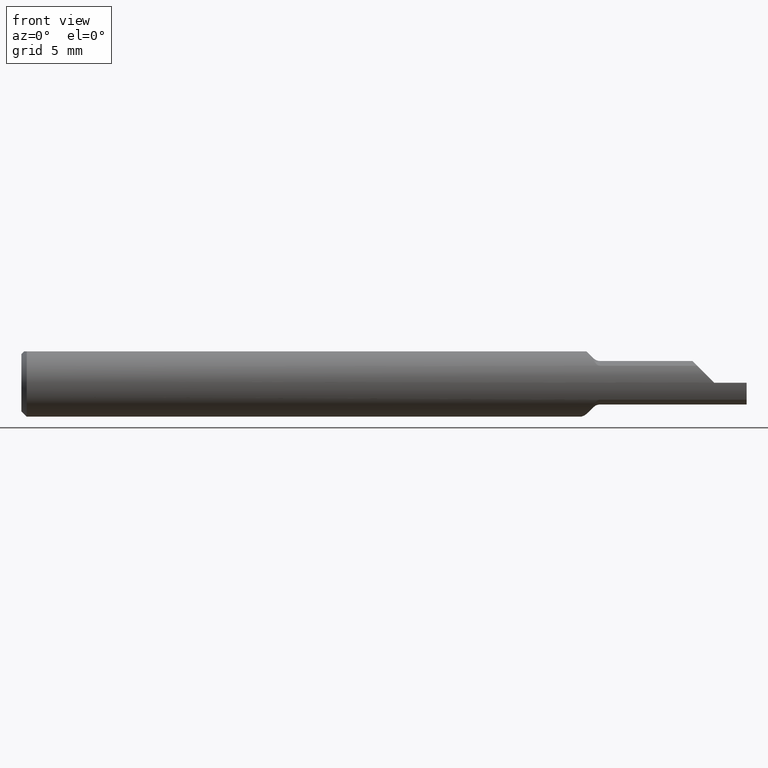
[diagram: clean part render]
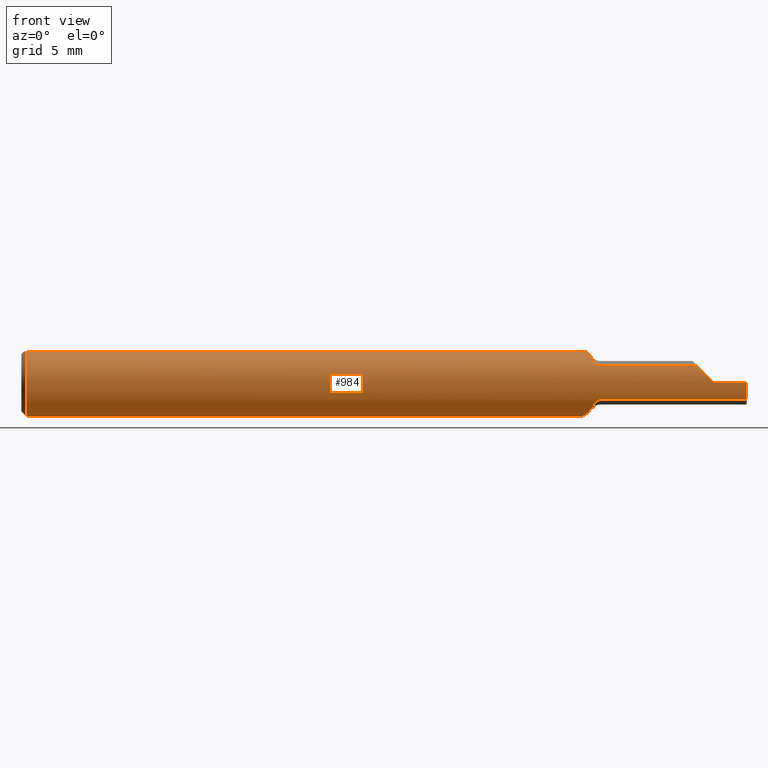
[diagram: same view with one face highlighted and labeled with its STEP entity id]
A machine part, front view. The second image highlights one B-rep face of the part: STEP entity #984.
In plain terms, the highlighted cylindrical surface (edge-blend (fillet) strip) has radius 2.3774 mm, axis along (-1, -0, -0).
Its self-contained STEP definition (entity closure, byte-faithful):
#6 = ORIENTED_EDGE ( 'NONE', *, *, #173, .T. ) ;
#9 =( BOUNDED_CURVE ( )  B_SPLINE_CURVE ( 3, ( #237, #563, #825, #333 ),
 .UNSPECIFIED., .F., .T. ) 
 B_SPLINE_CURVE_WITH_KNOTS ( ( 4, 4 ),
 ( 4.716662497666021636, 5.237580787391522108 ),
 .UNSPECIFIED. ) 
 CURVE ( )  GEOMETRIC_REPRESENTATION_ITEM ( )  RATIONAL_B_SPLINE_CURVE ( ( 1.000000000000000000, 0.9775145593731180416, 0.9775145593731180416, 1.000000000000000000 ) ) 
 REPRESENTATION_ITEM ( '' )  );
#12 = ORIENTED_EDGE ( 'NONE', *, *, #335, .T. ) ;
#27 = CARTESIAN_POINT ( 'NONE',  ( 1.595355339059326916, -0.08098532110091744007, 0.04692907165266853309 ) ) ;
#29 = CARTESIAN_POINT ( 'NONE',  ( 1.507730217382799331, 0.09381949476875167671, 0.001379171797657550687 ) ) ;
#31 = EDGE_CURVE ( 'NONE', #514, #89, #765, .T. ) ;
#32 = CARTESIAN_POINT ( 'NONE',  ( 1.581500133130178787, -0.07537161458921129431, -0.05560766583996937240 ) ) ;
#34 = CARTESIAN_POINT ( 'NONE',  ( 1.515120089012976567, 0.07115311157076049942, 0.06114742213607386040 ) ) ;
#36 = CARTESIAN_POINT ( 'NONE',  ( 1.577677669529663484, -0.07029385114728008144, 0.06180400060581866389 ) ) ;
#43 = DIRECTION ( 'NONE',  ( -1.000000000000000000, -0.000000000000000000, -0.000000000000000000 ) ) ;
#46 = CARTESIAN_POINT ( 'NONE',  ( 1.515939244946421072, 0.06872653992798646860, -0.06386219844968345216 ) ) ;
#51 = CARTESIAN_POINT ( 'NONE',  ( 1.558023520836405496, -0.03551619348973038964, 0.08659999999999998255 ) ) ;
#69 = LINE ( 'NONE', #725, #752 ) ;
#77 = CIRCLE ( 'NONE', #882, 0.09360000000000001652 ) ;
#87 = DIRECTION ( 'NONE',  ( 1.000000000000000000, 0.000000000000000000, 0.000000000000000000 ) ) ;
#89 = VERTEX_POINT ( 'NONE', #1039 ) ;
#90 = EDGE_CURVE ( 'NONE', #1059, #261, #758, .T. ) ;
#91 = ORIENTED_EDGE ( 'NONE', *, *, #552, .T. ) ;
#92 = CARTESIAN_POINT ( 'NONE',  ( 1.564807130151062209, -0.04860037098925388405, -0.08019286984893751746 ) ) ;
#94 = VERTEX_POINT ( 'NONE', #376 ) ;
#95 = CARTESIAN_POINT ( 'NONE',  ( 1.558023520836405496, -0.03551619348973038964, 0.08659999999999998255 ) ) ;
#101 = CARTESIAN_POINT ( 'NONE',  ( 1.508476095694653241, 0.09147652334571192145, 0.02088478041190030762 ) ) ;
#104 = VERTEX_POINT ( 'NONE', #774 ) ;
#106 = CARTESIAN_POINT ( 'NONE',  ( 1.577677669529663484, -0.07029385114728012307, -0.06180400060581860144 ) ) ;
#113 = DIRECTION ( 'NONE',  ( 0.000000000000000000, 0.000000000000000000, 1.000000000000000000 ) ) ;
#116 = CARTESIAN_POINT ( 'NONE',  ( 1.543265014012250136, -0.003655424042671508254, -0.09371940383682350606 ) ) ;
#122 = CARTESIAN_POINT ( 'NONE',  ( 1.508300457160753449, 0.09202461176102584572, -0.01829547249540547024 ) ) ;
#139 = CARTESIAN_POINT ( 'NONE',  ( 1.562174883036604900, -0.04360000000000001374, 0.08282511696339463214 ) ) ;
#150 = ORIENTED_EDGE ( 'NONE', *, *, #992, .T. ) ;
#172 = CARTESIAN_POINT ( 'NONE',  ( 1.517491920919020298, 0.06414576699549907890, -0.06845644935455028057 ) ) ;
#173 = EDGE_CURVE ( 'NONE', #1059, #286, #641, .T. ) ;
#180 = CARTESIAN_POINT ( 'NONE',  ( 1.910000000000000142, -0.09359914529524315796, 0.0004000000000000088012 ) ) ;
#181 = CARTESIAN_POINT ( 'NONE',  ( 2.000000000000000000, 0.000000000000000000, 0.000000000000000000 ) ) ;
#182 = ORIENTED_EDGE ( 'NONE', *, *, #748, .F. ) ;
#183 = EDGE_CURVE ( 'NONE', #776, #94, #221, .T. ) ;
#184 = CARTESIAN_POINT ( 'NONE',  ( 1.579434680320812578, -0.07300683420052989092, -0.05871834231443162633 ) ) ;
#188 = CARTESIAN_POINT ( 'NONE',  ( 1.585702228276974823, -0.07835280535911738620, 0.05123303017220876693 ) ) ;
#190 = CARTESIAN_POINT ( 'NONE',  ( 1.548495826740103221, -0.01554707447101389903, -0.09249312004605583781 ) ) ;
#197 = CARTESIAN_POINT ( 'NONE',  ( 1.520885649790713279, 0.05435289654770205509, -0.07646389683077736699 ) ) ;
#203 = CARTESIAN_POINT ( 'NONE',  ( 1.509393831565363886, 0.08861025287414571461, -0.03084601382962844779 ) ) ;
#219 = DIRECTION ( 'NONE',  ( 0.000000000000000000, 0.000000000000000000, 1.000000000000000000 ) ) ;
#221 = LINE ( 'NONE', #648, #919 ) ;
#224 = ORIENTED_EDGE ( 'NONE', *, *, #1048, .T. ) ;
#233 = CARTESIAN_POINT ( 'NONE',  ( 0.01499999999999997689, 0.000000000000000000, -0.09360000000000001652 ) ) ;
#236 = AXIS2_PLACEMENT_3D ( 'NONE', #709, #43, #219 ) ;
#237 = CARTESIAN_POINT ( 'NONE',  ( 1.910000000000000142, -0.09359914529524315796, 0.0004000000000000088012 ) ) ;
#238 = CARTESIAN_POINT ( 'NONE',  ( 1.527701525703423213, 0.03551619348973086149, 0.08659999999999998255 ) ) ;
#240 = ORIENTED_EDGE ( 'NONE', *, *, #31, .F. ) ;
#243 = DIRECTION ( 'NONE',  ( 0.000000000000000000, 0.000000000000000000, -1.000000000000000000 ) ) ;
#256 = VERTEX_POINT ( 'NONE', #238 ) ;
#261 = VERTEX_POINT ( 'NONE', #805 ) ;
#270 = CARTESIAN_POINT ( 'NONE',  ( 1.590944544278903416, -0.08054755630905480190, 0.04769340736591588109 ) ) ;
#274 = CARTESIAN_POINT ( 'NONE',  ( 1.593082417335663914, -0.08098532110091742620, -0.04692907165266855390 ) ) ;
#278 = VECTOR ( 'NONE', #283, 39.37007874015748143 ) ;
#283 = DIRECTION ( 'NONE',  ( 1.000000000000000000, 0.000000000000000000, 0.000000000000000000 ) ) ;
#286 = VERTEX_POINT ( 'NONE', #894 ) ;
#290 = CARTESIAN_POINT ( 'NONE',  ( 0.01499999999999997689, 0.000000000000000000, 0.000000000000000000 ) ) ;
#298 = CARTESIAN_POINT ( 'NONE',  ( 1.564810682801530906, -0.04860711981243295149, 0.08018931719846870976 ) ) ;
#309 = EDGE_CURVE ( 'NONE', #514, #421, #69, .T. ) ;
#317 = VERTEX_POINT ( 'NONE', #233 ) ;
#320 = B_SPLINE_CURVE_WITH_KNOTS ( 'NONE', 3,
 ( #557, #475, #1055, #770, #190, #116, #513, #694, #610, #845, #1022, #365, #197, #172, #46, #601, #531, #941, #203, #122, #863, #29, #434, #101, #676, #858, #687, #372, #34, #447, #1029, #851, #519, #781 ),
 .UNSPECIFIED., .F., .F.,
 ( 4, 2, 2, 2, 2, 2, 2, 2, 2, 2, 2, 2, 2, 2, 2, 2, 4 ),
 ( 0.001449473354703524966, 0.001946690950049000243, 0.002443908545394475520, 0.002941126140739950580, 0.003438343736085426074, 0.003935561331430901567, 0.004432778926776377061, 0.004929996522121852555, 0.005427214117467328049, 0.005924431712812804410, 0.006421649308158279904, 0.006918866903503756265, 0.007416084498849231758, 0.007913302094194708119, 0.008410519689540181879, 0.008907737284885657372, 0.009404954880231132866 ),
 .UNSPECIFIED. ) ;
#333 = CARTESIAN_POINT ( 'NONE',  ( 1.863470928347331190, -0.08098532110091742620, 0.04692907165266854003 ) ) ;
#335 = EDGE_CURVE ( 'NONE', #421, #1004, #577, .T. ) ;
#350 = VERTEX_POINT ( 'NONE', #380 ) ;
#353 = CARTESIAN_POINT ( 'NONE',  ( 1.593089284779637405, -0.08098532110091745395, 0.04692907165266853309 ) ) ;
#360 = ORIENTED_EDGE ( 'NONE', *, *, #934, .T. ) ;
#361 = CARTESIAN_POINT ( 'NONE',  ( 1.567429827598531666, -0.05334323113763458218, 0.07712124314794466251 ) ) ;
#365 = CARTESIAN_POINT ( 'NONE',  ( 1.522725758621181091, 0.04914086561991826141, -0.07990555479593185184 ) ) ;
#372 = CARTESIAN_POINT ( 'NONE',  ( 1.513785744349288587, 0.07515970287789000559, 0.05615941996324871205 ) ) ;
#376 = CARTESIAN_POINT ( 'NONE',  ( 1.863470928347331190, -0.08098532110091742620, 0.04692907165266854003 ) ) ;
#379 = EDGE_CURVE ( 'NONE', #261, #788, #508, .T. ) ;
#380 = CARTESIAN_POINT ( 'NONE',  ( 1.577677669529663484, -0.07029385114728012307, -0.06180400060581860144 ) ) ;
#396 = DIRECTION ( 'NONE',  ( -1.000000000000000000, -0.000000000000000000, -0.000000000000000000 ) ) ;
#412 = DIRECTION ( 'NONE',  ( 0.000000000000000000, 0.000000000000000000, -1.000000000000000000 ) ) ;
#414 = B_SPLINE_CURVE_WITH_KNOTS ( 'NONE', 3,
 ( #27, #353, #270, #529, #188, #692, #755, #595 ),
 .UNSPECIFIED., .F., .F.,
 ( 4, 2, 2, 4 ),
 ( 0.000000000000000000, 0.0001696820906343345027, 0.0003393641812686690054, 0.0006787283625373245668 ),
 .UNSPECIFIED. ) ;
#421 = VERTEX_POINT ( 'NONE', #450 ) ;
#426 = LINE ( 'NONE', #762, #278 ) ;
#429 = ORIENTED_EDGE ( 'NONE', *, *, #994, .T. ) ;
#434 = CARTESIAN_POINT ( 'NONE',  ( 1.507832322352278265, 0.09349711215871500669, 0.007900531263943145685 ) ) ;
#445 = CARTESIAN_POINT ( 'NONE',  ( 1.560796085082294393, -0.04098075454507676268, 0.08420391491770511105 ) ) ;
#446 = AXIS2_PLACEMENT_3D ( 'NONE', #773, #674, #113 ) ;
#447 = CARTESIAN_POINT ( 'NONE',  ( 1.518166364789388378, 0.06218498935449453396, 0.07024812893643297973 ) ) ;
#448 = VERTEX_POINT ( 'NONE', #872 ) ;
#450 = CARTESIAN_POINT ( 'NONE',  ( 1.910000000000000142, -0.09359999999999998876, -6.429183357567478880E-17 ) ) ;
#460 = DIRECTION ( 'NONE',  ( -1.000000000000000000, -0.000000000000000000, -0.000000000000000000 ) ) ;
#475 = CARTESIAN_POINT ( 'NONE',  ( 1.559416727823433657, -0.03836044660242826643, -0.08558327217656612473 ) ) ;
#479 = CARTESIAN_POINT ( 'NONE',  ( 2.000000000000000000, -0.03551619348973089618, 0.08659999999999998255 ) ) ;
#484 = CARTESIAN_POINT ( 'NONE',  ( 1.575228489598879733, -0.06651209654449287412, -0.06610524474079522428 ) ) ;
#497 = CARTESIAN_POINT ( 'NONE',  ( 1.572653976226357830, -0.06232557759648692935, -0.07006481405258219164 ) ) ;
#508 = B_SPLINE_CURVE_WITH_KNOTS ( 'NONE', 3,
 ( #139, #298, #361, #956, #689, #36 ),
 .UNSPECIFIED., .F., .F.,
 ( 4, 2, 4 ),
 ( 0.0002485545944389310272, 0.0007226124841471822779, 0.001196670373855433529 ),
 .UNSPECIFIED. ) ;
#513 = CARTESIAN_POINT ( 'NONE',  ( 1.540674899065930470, 0.002473900429620058510, -0.09376372094842914950 ) ) ;
#514 = VERTEX_POINT ( 'NONE', #653 ) ;
#519 = CARTESIAN_POINT ( 'NONE',  ( 1.525549505070181722, 0.04130584341940989751, 0.08422556204225994936 ) ) ;
#529 = CARTESIAN_POINT ( 'NONE',  ( 1.587270107998830726, -0.07922514269342434412, 0.04985926893505469165 ) ) ;
#531 = CARTESIAN_POINT ( 'NONE',  ( 1.512096236419457673, 0.08028148374112677177, -0.04856492361454631951 ) ) ;
#536 = CARTESIAN_POINT ( 'NONE',  ( 1.767499999999999849, -0.08098532110091744007, -0.04692907165266853309 ) ) ;
#552 = EDGE_CURVE ( 'NONE', #1004, #94, #9, .T. ) ;
#553 = DIRECTION ( 'NONE',  ( 1.000000000000000000, 0.000000000000000000, 0.000000000000000000 ) ) ;
#554 = DIRECTION ( 'NONE',  ( 1.000000000000000000, -0.000000000000000000, -0.000000000000000000 ) ) ;
#557 = CARTESIAN_POINT ( 'NONE',  ( 1.562174883036604900, -0.04359999999999999987, -0.08282511696339463214 ) ) ;
#560 = AXIS2_PLACEMENT_3D ( 'NONE', #181, #87, #412 ) ;
#562 = ORIENTED_EDGE ( 'NONE', *, *, #741, .T. ) ;
#563 = CARTESIAN_POINT ( 'NONE',  ( 1.893560996053938350, -0.09352889250011661715, 0.01683900394606149126 ) ) ;
#566 = CARTESIAN_POINT ( 'NONE',  ( 0.01499999999999997689, 0.000000000000000000, 0.000000000000000000 ) ) ;
#577 = CIRCLE ( 'NONE', #236, 0.09360000000000001652 ) ;
#586 = CARTESIAN_POINT ( 'NONE',  ( 1.585639508677810783, -0.07831503026254453548, -0.05129082989646372576 ) ) ;
#594 = EDGE_CURVE ( 'NONE', #104, #256, #320, .T. ) ;
#595 = CARTESIAN_POINT ( 'NONE',  ( 1.577677669529663484, -0.07029385114728008144, 0.06180400060581866389 ) ) ;
#598 = ORIENTED_EDGE ( 'NONE', *, *, #848, .F. ) ;
#601 = CARTESIAN_POINT ( 'NONE',  ( 1.513252824815950248, 0.07676139857450867132, -0.05393890405065052823 ) ) ;
#610 = CARTESIAN_POINT ( 'NONE',  ( 1.533392098380112145, 0.02051992070829877432, -0.09152830773666506547 ) ) ;
#641 = LINE ( 'NONE', #479, #696 ) ;
#642 = AXIS2_PLACEMENT_3D ( 'NONE', #566, #981, #243 ) ;
#648 = CARTESIAN_POINT ( 'NONE',  ( 1.767499999999999849, -0.08098532110091744007, 0.04692907165266853309 ) ) ;
#653 = CARTESIAN_POINT ( 'NONE',  ( 2.000000000000000000, -0.09359999999999989162, -6.429183357567480113E-17 ) ) ;
#655 = CARTESIAN_POINT ( 'NONE',  ( 1.567431899142503804, -0.05334778958292694939, -0.07712048455225355148 ) ) ;
#668 = ORIENTED_EDGE ( 'NONE', *, *, #379, .F. ) ;
#674 = DIRECTION ( 'NONE',  ( -1.000000000000000000, -0.000000000000000000, -0.000000000000000000 ) ) ;
#676 = CARTESIAN_POINT ( 'NONE',  ( 1.509020195642277518, 0.08977100142499537527, 0.02728114714779978148 ) ) ;
#685 = CARTESIAN_POINT ( 'NONE',  ( 1.587216637231161798, -0.07920126791852320769, -0.04989764583504369133 ) ) ;
#687 = CARTESIAN_POINT ( 'NONE',  ( 1.511475077763426933, 0.08217488604661300766, 0.04527857650729996686 ) ) ;
#689 = CARTESIAN_POINT ( 'NONE',  ( 1.575214609688116996, -0.06649066471102241249, 0.06612962060800474384 ) ) ;
#690 = CIRCLE ( 'NONE', #642, 0.09360000000000001652 ) ;
#692 = CARTESIAN_POINT ( 'NONE',  ( 1.581544521438683182, -0.07541641485153458002, 0.05554661397440854159 ) ) ;
#694 = CARTESIAN_POINT ( 'NONE',  ( 1.535742326738734675, 0.01455546558514136599, -0.09266009913134309883 ) ) ;
#696 = VECTOR ( 'NONE', #396, 39.37007874015748143 ) ;
#709 = CARTESIAN_POINT ( 'NONE',  ( 1.910000000000000142, 0.000000000000000000, 0.000000000000000000 ) ) ;
#725 = CARTESIAN_POINT ( 'NONE',  ( 2.000000000000000000, -0.09360000000000001652, -6.429183357567480113E-17 ) ) ;
#741 = EDGE_CURVE ( 'NONE', #286, #317, #77, .T. ) ;
#748 = EDGE_CURVE ( 'NONE', #89, #448, #963, .T. ) ;
#752 = VECTOR ( 'NONE', #1051, 39.37007874015748143 ) ;
#755 = CARTESIAN_POINT ( 'NONE',  ( 1.579435438298166128, -0.07300800458589498665, 0.05871701115635390156 ) ) ;
#758 = B_SPLINE_CURVE_WITH_KNOTS ( 'NONE', 3,
 ( #51, #1015, #445, #786 ),
 .UNSPECIFIED., .F., .F.,
 ( 4, 4 ),
 ( 5.729164479850955060E-07, 0.0002485545944389310272 ),
 .UNSPECIFIED. ) ;
#762 = CARTESIAN_POINT ( 'NONE',  ( 2.000000000000000000, 0.03551619348973089618, 0.08659999999999998255 ) ) ;
#765 = CIRCLE ( 'NONE', #560, 0.09360000000000001652 ) ;
#767 = B_SPLINE_CURVE_WITH_KNOTS ( 'NONE', 3,
 ( #1058, #484, #497, #655, #92, #904 ),
 .UNSPECIFIED., .F., .F.,
 ( 4, 2, 4 ),
 ( 0.0005004335223145968447, 0.0009749534385090606343, 0.001449473354703524966 ),
 .UNSPECIFIED. ) ;
#770 = CARTESIAN_POINT ( 'NONE',  ( 1.551162578112211810, -0.02137516006684748310, -0.09132136495557871547 ) ) ;
#773 = CARTESIAN_POINT ( 'NONE',  ( 2.000000000000000000, 0.000000000000000000, 0.000000000000000000 ) ) ;
#774 = CARTESIAN_POINT ( 'NONE',  ( 1.562174883036604900, -0.04359999999999999987, -0.08282511696339463214 ) ) ;
#776 = VERTEX_POINT ( 'NONE', #799 ) ;
#781 = CARTESIAN_POINT ( 'NONE',  ( 1.527701525703423213, 0.03551619348973086149, 0.08659999999999998255 ) ) ;
#786 = CARTESIAN_POINT ( 'NONE',  ( 1.562174883036604900, -0.04360000000000001374, 0.08282511696339463214 ) ) ;
#788 = VERTEX_POINT ( 'NONE', #1040 ) ;
#799 = CARTESIAN_POINT ( 'NONE',  ( 1.595355339059326916, -0.08098532110091744007, 0.04692907165266853309 ) ) ;
#805 = CARTESIAN_POINT ( 'NONE',  ( 1.562174883036604900, -0.04360000000000001374, 0.08282511696339463214 ) ) ;
#806 = DIRECTION ( 'NONE',  ( 0.000000000000000000, 0.000000000000000000, -1.000000000000000000 ) ) ;
#825 = CARTESIAN_POINT ( 'NONE',  ( 1.877694541276184292, -0.08922756724162471398, 0.03270545872381525748 ) ) ;
#834 = ORIENTED_EDGE ( 'NONE', *, *, #183, .F. ) ;
#839 = CARTESIAN_POINT ( 'NONE',  ( 1.595355339059326916, -0.08098532110091744007, -0.04692907165266853309 ) ) ;
#845 = CARTESIAN_POINT ( 'NONE',  ( 1.528890268427389065, 0.03227618288569650273, -0.08807239227670383974 ) ) ;
#848 = EDGE_CURVE ( 'NONE', #350, #104, #767, .T. ) ;
#851 = CARTESIAN_POINT ( 'NONE',  ( 1.523563078640440382, 0.04680750307691880496, 0.08129727678532774893 ) ) ;
#856 = CYLINDRICAL_SURFACE ( 'NONE', #446, 0.09360000000000001652 ) ;
#858 = CARTESIAN_POINT ( 'NONE',  ( 1.510511327969831008, 0.08514595224235760318, 0.03941142604992352999 ) ) ;
#863 = CARTESIAN_POINT ( 'NONE',  ( 1.507960659897338740, 0.09309458096140459105, -0.01172171954671188086 ) ) ;
#869 = EDGE_LOOP ( 'NONE', ( #182, #240, #1012, #12, #91, #834, #429, #668, #917, #6, #562, #360, #150, #1008, #598, #224 ) ) ;
#872 = CARTESIAN_POINT ( 'NONE',  ( 1.595355339059326916, -0.08098532110091744007, -0.04692907165266853309 ) ) ;
#882 = AXIS2_PLACEMENT_3D ( 'NONE', #290, #554, #806 ) ;
#894 = CARTESIAN_POINT ( 'NONE',  ( 0.01499999999999997689, -0.03551619348973089618, 0.08659999999999998255 ) ) ;
#904 = CARTESIAN_POINT ( 'NONE',  ( 1.562174883036604900, -0.04359999999999999987, -0.08282511696339463214 ) ) ;
#917 = ORIENTED_EDGE ( 'NONE', *, *, #90, .F. ) ;
#919 = VECTOR ( 'NONE', #553, 39.37007874015748143 ) ;
#924 = VERTEX_POINT ( 'NONE', #995 ) ;
#934 = EDGE_CURVE ( 'NONE', #317, #924, #690, .T. ) ;
#941 = CARTESIAN_POINT ( 'NONE',  ( 1.510152022803403549, 0.08625128397210297948, -0.03693757504936096697 ) ) ;
#956 = CARTESIAN_POINT ( 'NONE',  ( 1.572622669439098342, -0.06227274567056476084, 0.07010914062757200860 ) ) ;
#963 = LINE ( 'NONE', #536, #1056 ) ;
#981 = DIRECTION ( 'NONE',  ( 1.000000000000000000, -0.000000000000000000, -0.000000000000000000 ) ) ;
#984 = ADVANCED_FACE ( 'NONE', ( #1009 ), #856, .T. ) ;
#992 = EDGE_CURVE ( 'NONE', #924, #256, #426, .T. ) ;
#994 = EDGE_CURVE ( 'NONE', #776, #788, #414, .T. ) ;
#995 = CARTESIAN_POINT ( 'NONE',  ( 0.01499999999999997689, 0.03551619348973089618, 0.08659999999999998255 ) ) ;
#998 = B_SPLINE_CURVE_WITH_KNOTS ( 'NONE', 3,
 ( #106, #184, #32, #586, #685, #1014, #274, #839 ),
 .UNSPECIFIED., .F., .F.,
 ( 4, 2, 2, 4 ),
 ( 3.066586833366748373E-19, 0.0003360319779195224685, 0.0005040479668792897201, 0.0006720639558390568633 ),
 .UNSPECIFIED. ) ;
#1004 = VERTEX_POINT ( 'NONE', #180 ) ;
#1008 = ORIENTED_EDGE ( 'NONE', *, *, #594, .F. ) ;
#1009 = FACE_OUTER_BOUND ( 'NONE', #869, .T. ) ;
#1012 = ORIENTED_EDGE ( 'NONE', *, *, #309, .T. ) ;
#1014 = CARTESIAN_POINT ( 'NONE',  ( 1.590919469471275383, -0.08054306570030630996, -0.04770147238164971354 ) ) ;
#1015 = CARTESIAN_POINT ( 'NONE',  ( 1.559412477529317886, -0.03828698621588679657, 0.08546364883854394578 ) ) ;
#1022 = CARTESIAN_POINT ( 'NONE',  ( 1.526719064373899926, 0.03812469162702816078, -0.08571015254603474298 ) ) ;
#1029 = CARTESIAN_POINT ( 'NONE',  ( 1.519879818681997952, 0.05722188270721495496, 0.07433603228884151648 ) ) ;
#1039 = CARTESIAN_POINT ( 'NONE',  ( 2.000000000000000000, -0.08098532110091745395, -0.04692907165266857472 ) ) ;
#1040 = CARTESIAN_POINT ( 'NONE',  ( 1.577677669529663484, -0.07029385114728008144, 0.06180400060581866389 ) ) ;
#1048 = EDGE_CURVE ( 'NONE', #350, #448, #998, .T. ) ;
#1051 = DIRECTION ( 'NONE',  ( -1.000000000000000000, -0.000000000000000000, -0.000000000000000000 ) ) ;
#1055 = CARTESIAN_POINT ( 'NONE',  ( 1.556623605259439991, -0.03278656602106054530, -0.08787223824268955430 ) ) ;
#1056 = VECTOR ( 'NONE', #460, 39.37007874015748143 ) ;
#1058 = CARTESIAN_POINT ( 'NONE',  ( 1.577677669529663484, -0.07029385114728012307, -0.06180400060581860144 ) ) ;
#1059 = VERTEX_POINT ( 'NONE', #95 ) ;